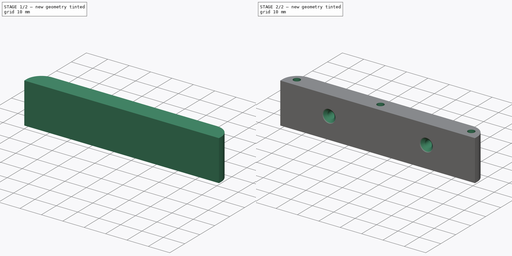
[diagram: build sequence overview — one tinted view per stage of 2, left to right]
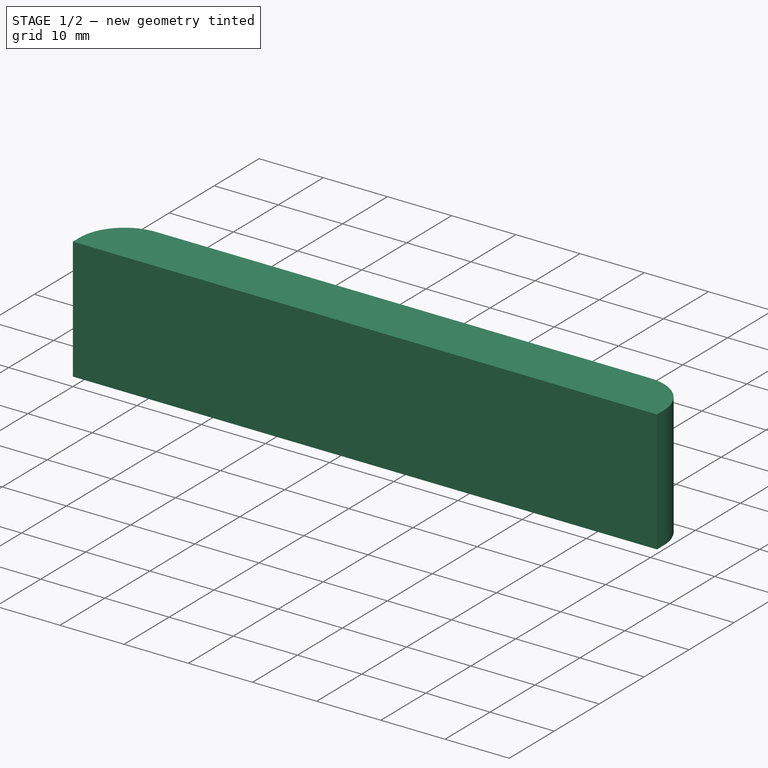
[diagram: stage 1 of 2 — iso view after this stage's code; geometry added in this stage tinted green]
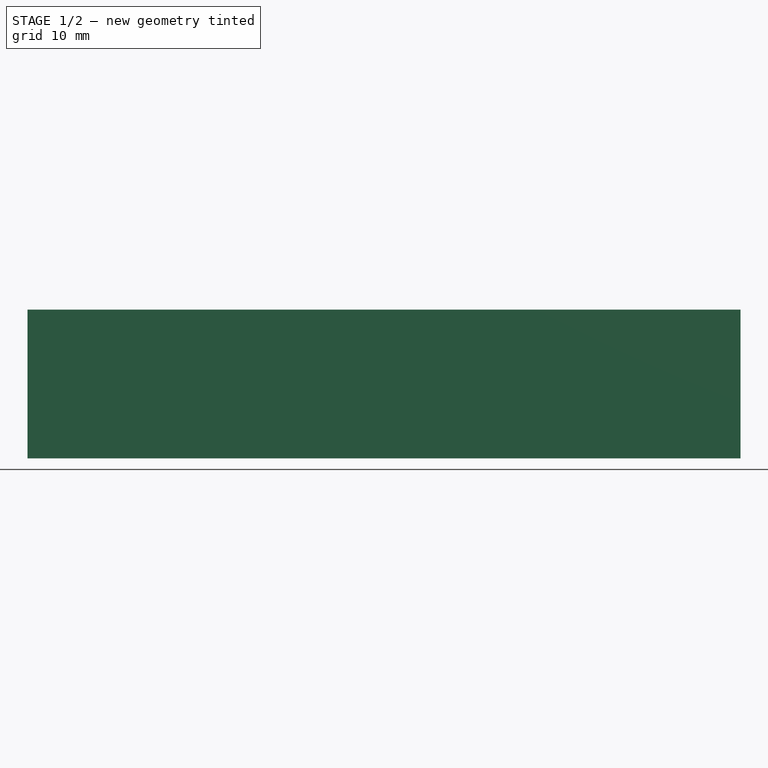
[diagram: stage 1 of 2 — front view after this stage's code; geometry added in this stage tinted green]
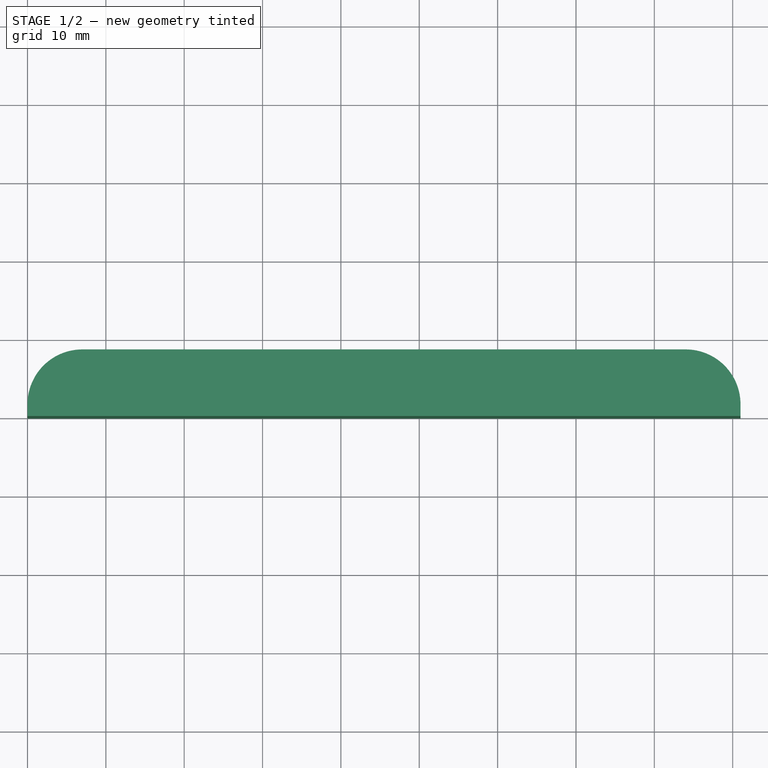
[diagram: stage 1 of 2 — top view after this stage's code; geometry added in this stage tinted green]
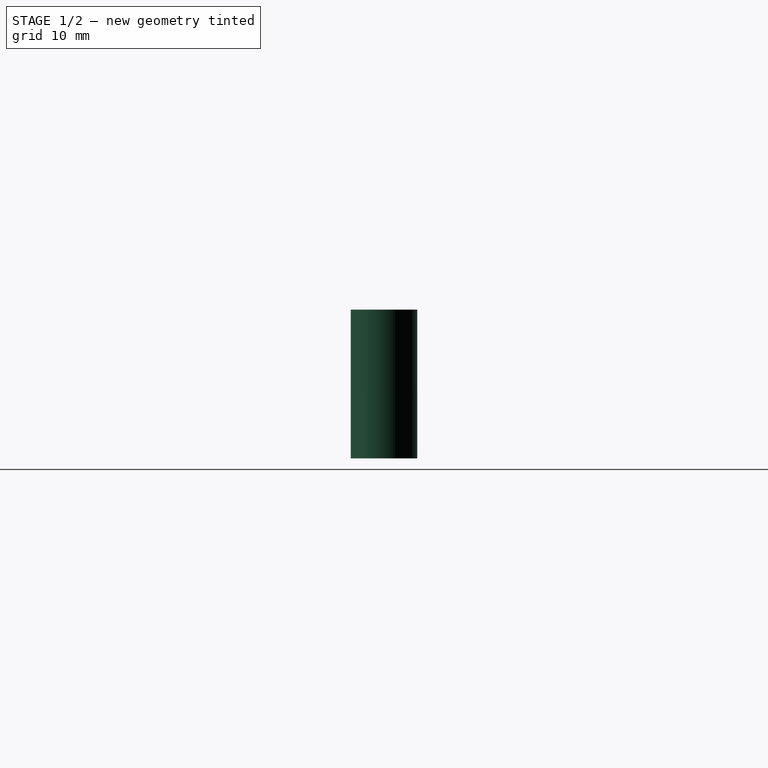
[diagram: stage 1 of 2 — right view after this stage's code; geometry added in this stage tinted green]
FCSTD DOCUMENT  (FreeCAD 0.21R33771 (Git))
Label: AFPI Mounts
License: All rights reserved
LicenseURL: http://en.wikipedia.org/wiki/All_rights_reserved
objects: Sketcher::SketchObject×3, PartDesign::Pad×1, PartDesign::Fillet×1, PartDesign::Pocket×1, PartDesign::Hole×1, PartDesign::Body×1
note: 12 computed .brp shape members not serialized (recipe doc carries the construction recipe); baked Part::Feature solids carry a one-line shape summary decoded from their .brp

FEATURE [Sketcher::SketchObject] Sketch
  FullyConstrained = true
  MapMode = 5
  Support = -> [XY_Plane]
  sketch-geometry (4):
    g0: LineSegment StartX=0 StartY=0 StartZ=0 EndX=91 EndY=0 EndZ=0
    g1: LineSegment StartX=91 StartY=0 StartZ=0 EndX=91 EndY=8.5 EndZ=0
    g2: LineSegment StartX=91 StartY=8.5 StartZ=0 EndX=0 EndY=8.5 EndZ=0
    g3: LineSegment StartX=0 StartY=8.5 StartZ=0 EndX=0 EndY=0 EndZ=0
  constraints (11):
    c: Coincident(g0,g1)
    c: Coincident(g1,g2)
    c: Coincident(g2,g3)
    c: Coincident(g3,g0)
    c: Horizontal(g0)
    c: Horizontal(g2)
    c: Vertical(g1)
    c: Vertical(g3)
    c: Coincident(g0,g-1)
    c: DistanceX(g2,g2) = 91
    c: DistanceY(g3,g3) = 8.5
FEATURE [PartDesign::Pad] Pad
  Direction = (0,0,1)
  Length = 19
  Length2 = 10
  Profile = -> Sketch
  ReferenceAxis = -> Sketch [N_Axis]
  Type = 0
FEATURE [PartDesign::Fillet] Fillet
  Base = -> Pad [Edge5,Edge8]
  BaseFeature = -> Pad
  Radius = 7
  SupportTransform = false
  UseAllEdges = false
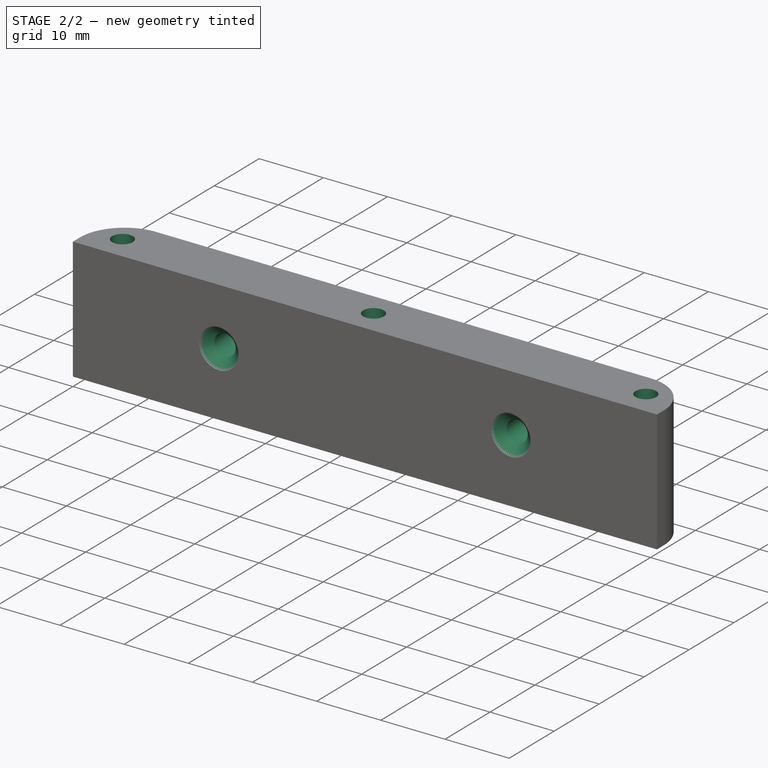
[diagram: stage 2 of 2 — iso view after this stage's code; geometry added in this stage tinted green]
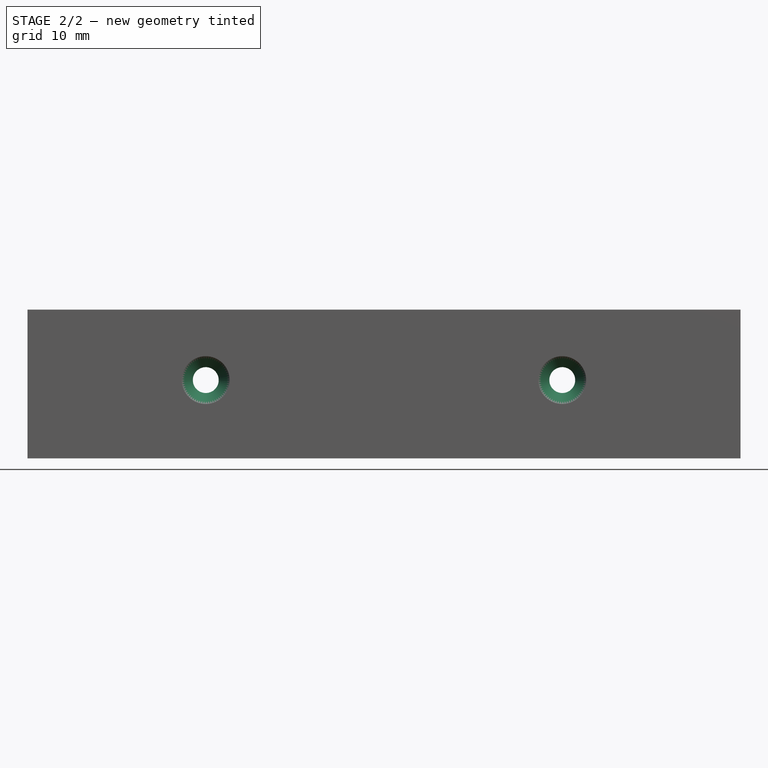
[diagram: stage 2 of 2 — front view after this stage's code; geometry added in this stage tinted green]
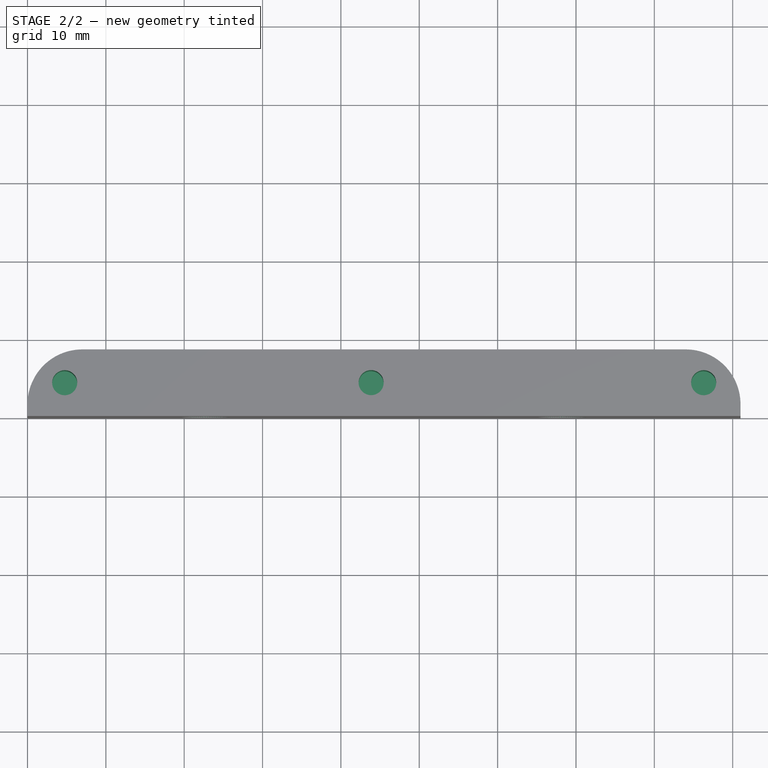
[diagram: stage 2 of 2 — top view after this stage's code; geometry added in this stage tinted green]
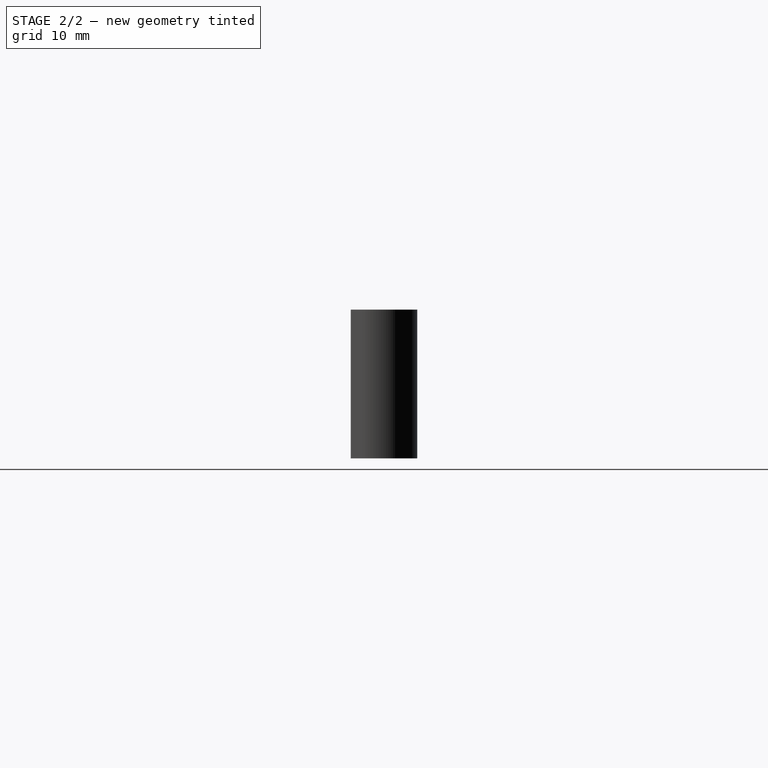
[diagram: stage 2 of 2 — right view after this stage's code; geometry added in this stage tinted green]
FEATURE [Sketcher::SketchObject] Sketch052
  FullyConstrained = false
  MapMode = 5
  Placement = pos=(0,0,19) rot=(0,0,1;0rad)
  Support = -> [Fillet]
  sketch-geometry (12):
    g0: LineSegment StartX=90.5 StartY=-1 StartZ=0 EndX=0.5 EndY=-1 EndZ=0
    g1: LineSegment StartX=0.5 StartY=-0.8 StartZ=0 EndX=4.75 EndY=-0.8 EndZ=0
    g2: LineSegment StartX=4.75 StartY=-0.8 StartZ=0 EndX=35 EndY=-0.8 EndZ=0
    g3: LineSegment StartX=35 StartY=-0.8 StartZ=0 EndX=77.34 EndY=-0.8 EndZ=0
    g4: LineSegment StartX=4.75 StartY=-0.7 StartZ=0 EndX=86.3 EndY=-0.7 EndZ=0
    g5: LineSegment StartX=0.499304 StartY=0 StartZ=0 EndX=4.74975 EndY=0 EndZ=0
    g6: LineSegment StartX=4.74975 StartY=0 StartZ=0 EndX=4.74975 EndY=4.25 EndZ=0
    g7: LineSegment StartX=4.74975 StartY=4.25 StartZ=0 EndX=90.5 EndY=4.25 EndZ=0
    g8: Circle CenterX=4.74975 CenterY=4.25 CenterZ=0 NormalX=0 NormalY=0 NormalZ=1 AngleXU=0 Radius=1.6
    g9: Circle CenterX=86.2995 CenterY=4.25 CenterZ=0 NormalX=0 NormalY=0 NormalZ=1 AngleXU=0 Radius=1.6
    g10: LineSegment StartX=4.75 StartY=4.26 StartZ=0 EndX=43.8558 EndY=4.26 EndZ=0
    g11: Circle CenterX=43.8558 CenterY=4.26 CenterZ=0 NormalX=0 NormalY=0 NormalZ=1 AngleXU=0 Radius=1.6
  constraints (22):
    c: Horizontal(g0)
    c: Horizontal(g1)
    c: Coincident(g2,g1)
    c: Horizontal(g2)
    c: Coincident(g3,g2)
    c: Horizontal(g3)
    c: Horizontal(g4)
    c: PointOnObject(g5,g-1)
    c: PointOnObject(g5,g-1)
    c: Coincident(g6,g5)
    c: Vertical(g6)
    c: Coincident(g7,g6)
    c: Horizontal(g7)
    c: DistanceY(g6,g6) = 4.25
    c: DistanceX(g5,g5) = 4.25045
    c: Coincident(g8,g6)
    c: PointOnObject(g9,g7)
    c: Horizontal(g10)
    c: Coincident(g11,g10)
    c: Equal(g8,g11)
    c: Equal(g8,g9)
    c: Diameter(g8) = 3.2
FEATURE [PartDesign::Pocket] Pocket
  BaseFeature = -> Fillet
  Direction = (0,0,-1)
  Length = 8
  Length2 = 5
  Profile = -> Sketch052
  ReferenceAxis = -> Sketch052 [N_Axis]
  Type = 0
FEATURE [Sketcher::SketchObject] Sketch053
  FullyConstrained = false
  MapMode = 5
  Placement = pos=(0,0,0) rot=(1,0,0;1.5708rad)
  Support = -> [Pocket]
  sketch-geometry (5):
    g0: LineSegment StartX=0 StartY=10 StartZ=0 EndX=45.5 EndY=10 EndZ=0
    g1: LineSegment StartX=45.5007 StartY=9.9 StartZ=0 EndX=22.7507 EndY=9.9 EndZ=0
    g2: LineSegment StartX=45.5002 StartY=9.9 StartZ=0 EndX=68.2502 EndY=9.9 EndZ=0
    g3: Circle CenterX=22.75 CenterY=10 CenterZ=0 NormalX=0 NormalY=0 NormalZ=1 AngleXU=0 Radius=1.75
    g4: Circle CenterX=68.25 CenterY=10 CenterZ=0 NormalX=0 NormalY=0 NormalZ=1 AngleXU=0 Radius=1.75
  constraints (10):
    c: PointOnObject(g0,g-2)
    c: Horizontal(g0)
    c: DistanceX(g0,g0) = 45.5
    c: Horizontal(g1)
    c: DistanceX(g1,g1) = 22.75
    c: Horizontal(g2)
    c: DistanceX(g2,g2) = 22.75
    c: PointOnObject(g3,g0)
    c: Equal(g3,g4)
    c: Diameter(g3) = 3.5
FEATURE [PartDesign::Hole] Hole
  BaseFeature = -> Pocket
  CustomThreadClearance = 0
  Depth = 25
  DepthType = 0
  Diameter = 3.3
  DrillForDepth = false
  DrillPoint = 0
  DrillPointAngle = 118
  HoleCutCountersinkAngle = 90
  HoleCutCustomValues = false
  HoleCutDepth = 0
  HoleCutDiameter = 6.1
  HoleCutType = 2
  ModelThread = false
  Profile = -> Sketch053
  Tapered = false
  TaperedAngle = 90
  ThreadClass = 0
  ThreadDepth = 25
  ThreadDepthType = 0
  ThreadDirection = 0
  ThreadFit = 0
  ThreadSize = 0
  ThreadType = 0
  Threaded = false
  UseCustomThreadClearance = false
FEATURE [PartDesign::Body] Body
  Group = -> [Sketch,Pad,Fillet,Sketch052,Pocket,Sketch053,Hole]
  Origin = -> Origin
  Tip = -> Hole
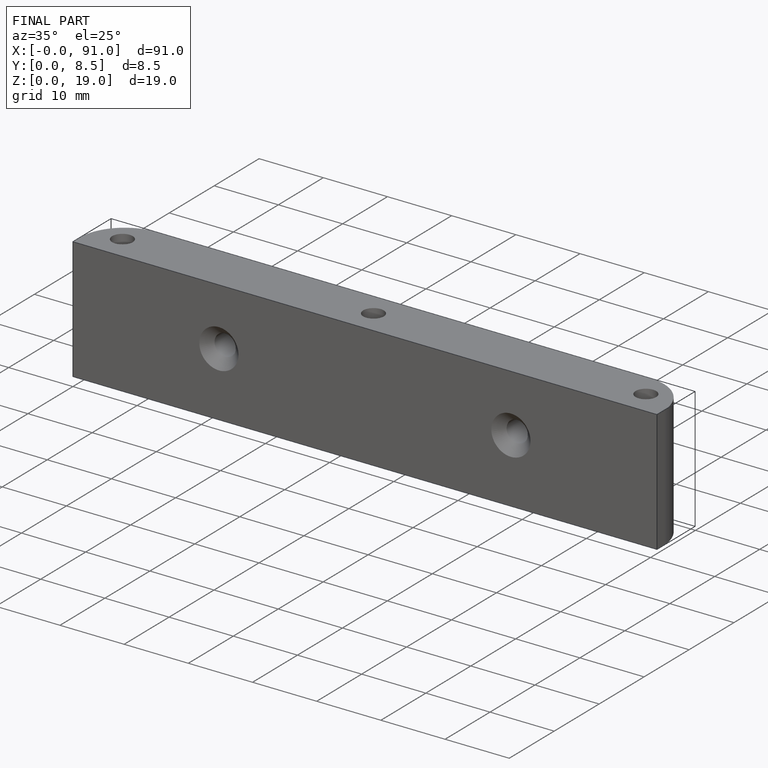
[diagram: finished part — iso view with bounding-box wireframe]
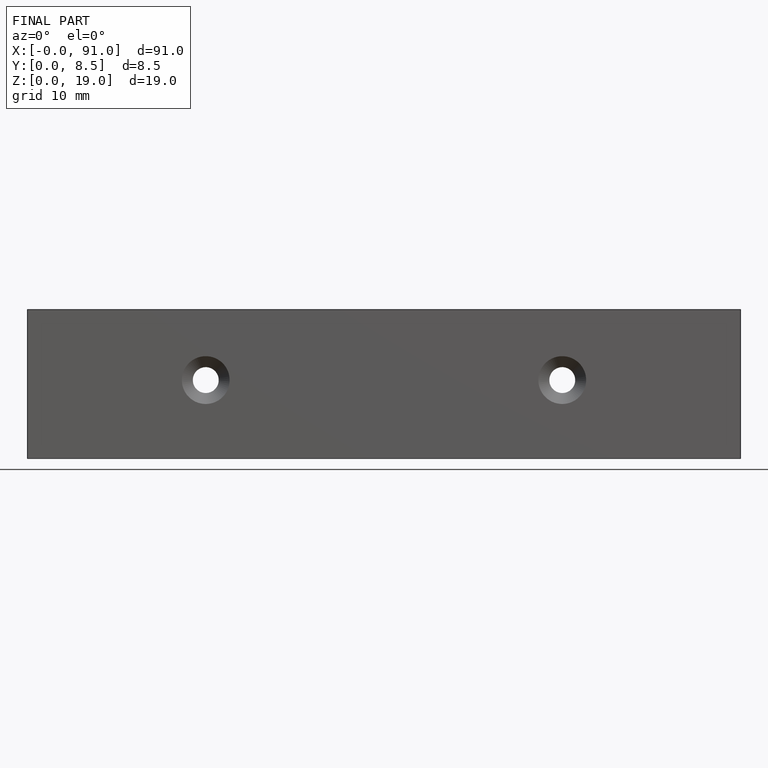
[diagram: finished part — front view with bounding-box wireframe]
